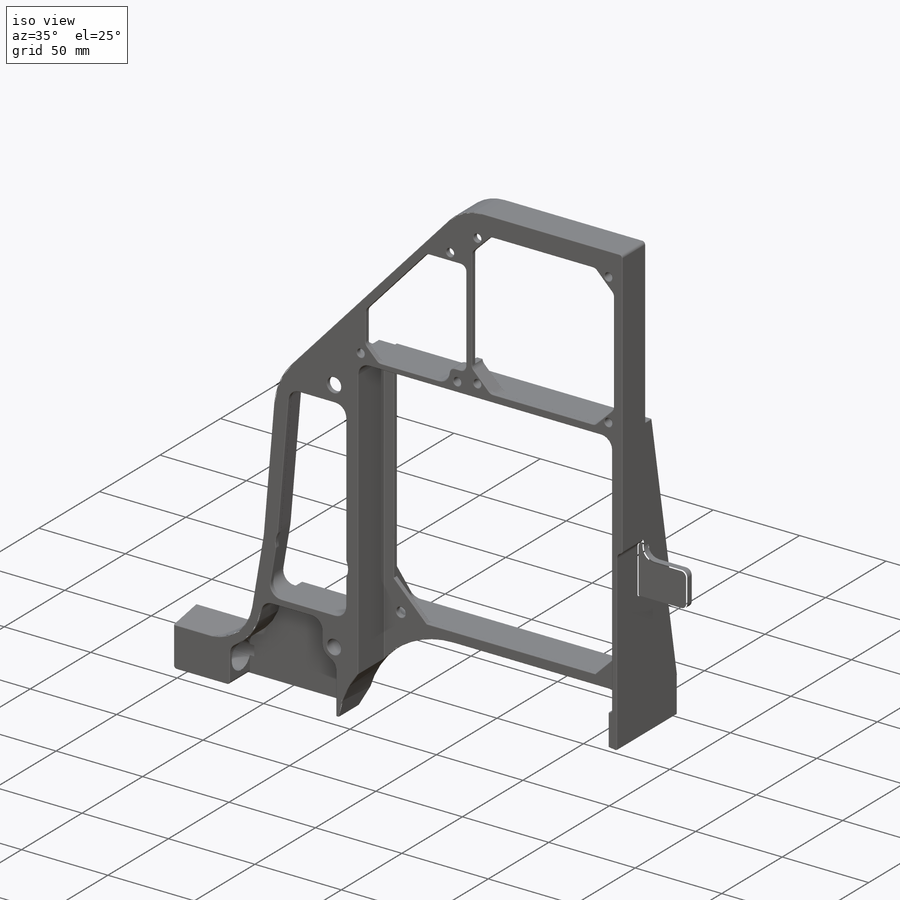
[diagram: iso view]
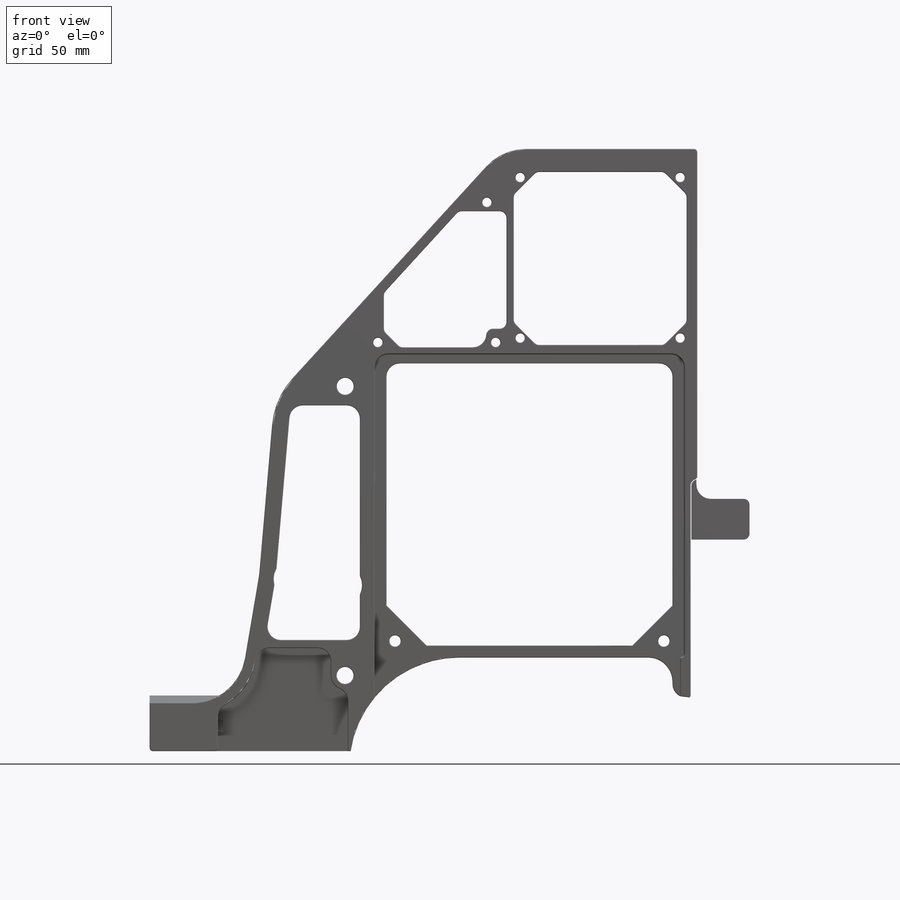
[diagram: front view]
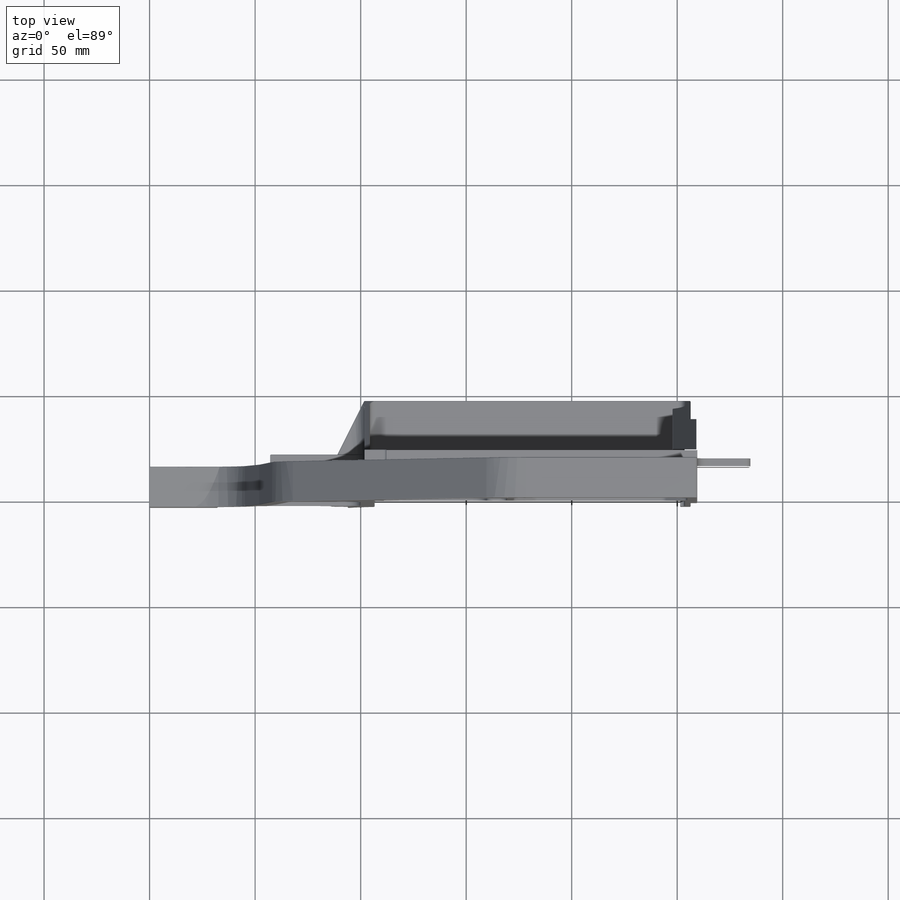
[diagram: top view]
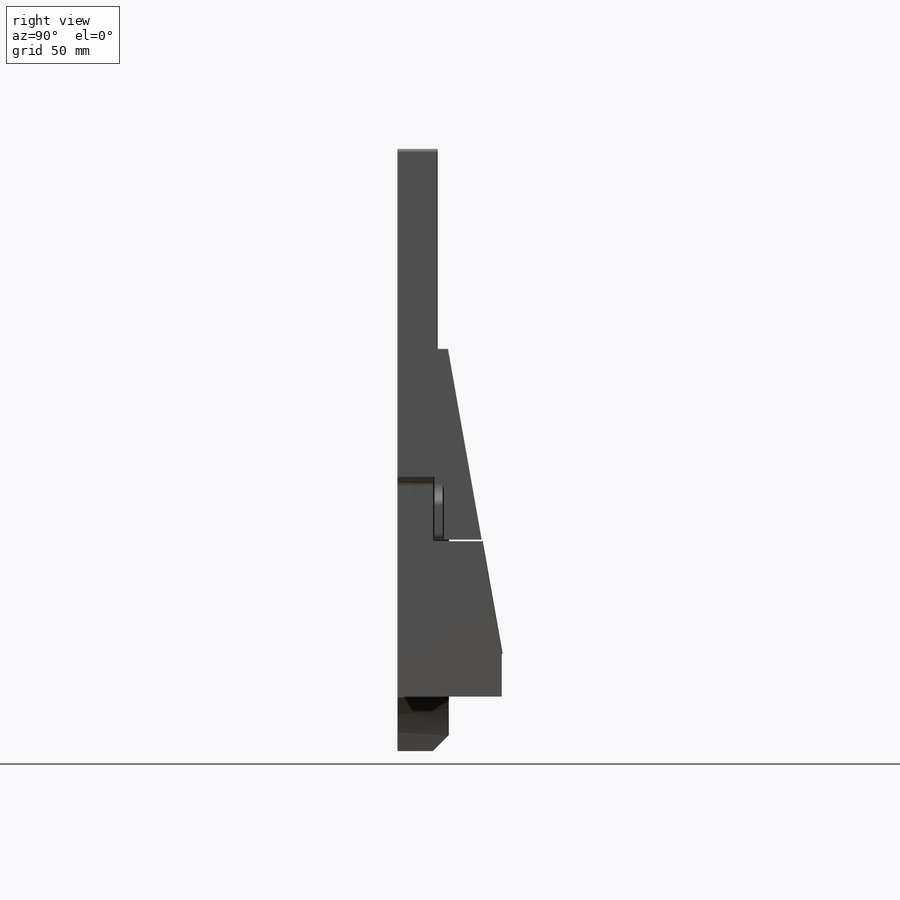
[diagram: right view]
SOLIDWORKS PART (.sldprt)
format: sldprt  version: not decoded by parser v0  size: 2,447,872 bytes
history: native  units: mm
features: fillet x44, sketch x25, extrude x18, cut_extrude x7, chamfer x3, material x1, plane x1 (+15 scaffold rows collapsed)
feature tree (114):
  scaffold x15  (default folders/planes/origin — collapsed)
  material  "6061-T6 (SS)"
  sketch  "Sketch1"  dims[c1.D17=335.915mm c1.D18=319.9638mm c1.D23=165.8874mm c1.D24=165.8874mm c2.D23=25.4mm c2.D24=38.1mm c2.D30=6.35mm c2.D31=6.35mm c2.D33=6.35mm c2.D35=76.2mm c2.D37=8.001mm c2.D36=6.35mm c3.D31=38.1mm c3.D28=6.35mm c3.D47=25.4mm c3.D50=6.35mm c3.D49=3.175mm c3.D52=19.05mm c3.D53=19.05mm c3.D54=19.05mm c3.D1=259.5118mm c3.D2=285.369mm c3.D5=~74.076137mm c4.D5=8.5deg c5.D5=~117.377746mm c6.D5=8.5deg c6.D1=3.175mm c6.D4=~92.444024mm c7.D4=8.5deg c7.D5=259.5118mm c7.D11=143.9164mm c7.D15=81.9404mm c7.D17=~143.81675mm c8.D17=~146.555915deg c9.D17=259.5118mm c10.D17=222.05deg c10.D18=285.369mm c10.D19=285.369mm c11.D19=5.05deg c11.D20=92.3798mm c11.D18=159.9819mm c12.D19=159.9819mm c13.D19=52.5deg c13.D20=~232.734196mm c14.D19=44.7548mm c14.D20=167.9575mm c14.D21=~40.056413mm c15.D20=256.3368mm c15.D32=111.125mm c15.D34=1.3716mm c15.D36=38.1mm c15.D37=~5.009499mm c16.D36=6.9723mm c16.D34=12.7mm c16.D38=35.8775mm c16.D39=~36.352434mm c17.D39=90.0deg c18.D39=13.97mm c18.D34=12.7mm c18.D36=~6.008644mm c18.D41=11.3284mm c18.D43=1.3716mm c18.D44=1.3716mm c18.D31=~27.530257mm c18.D35=~26.769295mm c18.D45=4.699mm c18.D47=~22.627975mm c18.D53=~11.018948mm c18.D55=25.4mm c19.D31=143.9164mm c19.D6=103.3272mm c20.D31=~9.542726mm c20.D3=25.4mm c20.D4=4.8768mm c20.D6=2.921mm c21.D4=3.175mm c21.D6=103.3145mm c22.D4=6.096mm c22.D7=4.8768mm c22.D8=18.9103mm c22.D9=162.8267mm c22.D10=146.812mm c22.D11=4.2545mm c22.D12=5.0292mm c22.D13=10.9474mm c22.D14=81.9404mm c22.D16=92.3798mm c22.D18=44.831mm c22.D20=22.86mm c22.D21=32.3215mm c22.D22=37.7698mm c22.D25=5.3086mm c22.D26=7.9121mm c22.D27=6.9723mm c22.D28=27.305mm c22.D29=3.8354mm c22.D32=111.125mm c22.D36=1.3716mm c22.D40=2.794mm c22.D41=26.67mm c22.D42=149.7076mm c22.D35=3.4544mm c23.D41=3.175mm c23.D44=58.0517mm c23.D45=4.699mm c23.D46=64.4144mm c23.D48=8.8138mm c23.D49=9.525mm c23.D51=0.9652mm c23.D53=0.9652mm c23.D31=143.9164mm]
  extrude  "Extrude1"  Depth=2.794mm
  chamfer  "Chamfer1"  Distance=7.62mm Angle=45deg
  chamfer  "Chamfer2"  Distance=10.795mm Angle=45deg
  fillet  "Fillet1"  Radius=3.175mm
  fillet  "Fillet2"  Radius=6.35mm
  fillet  "Fillet3"  Radius=1.5875mm
  fillet  "Fillet4"  Radius=1.5875mm
  fillet  "Fillet5"  Radius=3.175mm
  fillet  "Fillet6"  Radius=25.4mm
  fillet  "Fillet7"  Radius=1.5875mm
  sketch  "Sketch2"  dims[D1=2.4892mm]
  extrude  "Extrude2"  Depth=19.05mm
  sketch  "Sketch3"  dims[D1=1.27mm]
  extrude  "Extrude3"  Depth=19.05mm
  sketch  "Sketch5"
  extrude  "Extrude4"  Depth=2.286mm
  sketch  "Sketch6"  dims[D1=57.15mm D2=154.7622mm]
  extrude  "Extrude5"  Depth=24.3586mm
  sketch  "Sketch7"  dims[D6=6.35mm D7=11.43mm D1=~5.63245mm D2=~5.63245mm D3=4.5212mm D4=138.1633mm D5=157.6451mm]
  extrude  "Extrude6"  Depth=2.794mm
  sketch  "Sketch10"  dims[D1=10.541mm]
  extrude  "Extrude7"  [1 undecoded]
  sketch  "Sketch11"
  extrude  "Extrude8"  [1 undecoded]
  fillet  "Fillet8"  Radius=6.35mm
  fillet  "Fillet9"  Radius=6.35mm
  chamfer  "Chamfer3"  Distance=19.05mm Angle=45deg
  sketch  "Sketch12"  dims[D1=1.9304mm]
  extrude  "Extrude9"  Depth=49.8729mm
  sketch  "Sketch13"
  extrude  "Extrude10"  Depth=2.794mm
  sketch  "Sketch14"  dims[D1=0.0mm]
  extrude  "Extrude11"  [1 undecoded]
  plane  "Plane3"  Offset=21.7551mm
  sketch  "Sketch15"  dims[c1.D3=6.35mm c1.D4=20.0914mm c1.D1=74.4474mm c1.D2=28.3464mm c2.D3=20.0914mm]
  extrude  "Tab"  Depth=4.4831mm
  fillet  "Fillet11"  Radius=3.175mm
  sketch  "Sketch16"  dims[D1=0.0mm]
  extrude  "Extrude13"  [1 undecoded]
  sketch  "Sketch18"
  extrude  "Extrude14"  [1 undecoded]
  fillet  "Fillet12"  Radius=12.7mm
  sketch  "Sketch19"  dims[D1=38.735mm]
  extrude  "Extrude15"  Depth=2.5908mm
  sketch  "Sketch20"  dims[D1=12.7mm]
  extrude  "Extrude16"  Depth=1.651mm
  fillet  "Fillet13"  Radius=6.35mm
  fillet  "Fillet14"  Radius=3.175mm
  sketch  "Sketch21"  dims[c1.D1=~26.111556mm c2.D1=45.0deg]
  cut_extrude  "Bottom Slant Cut"  [1 undecoded]
  sketch  "Sketch22"
  extrude  "Upper Instrument Screw Hole Reinforcement Backing"  Depth=8.9408mm
  fillet  "Fillet15"  Radius=8.89mm
  fillet  "Fillet16"  Radius=6.35mm
  sketch  "Sketch23"  dims[D1=0.8636mm]
  cut_extrude  "Extrude19"  [1 undecoded]
  fillet  "Fillet17"  Radius=1.5875mm
  fillet  "Fillet18"  Radius=6.35mm
  fillet  "Fillet19"  Radius=3.175mm
  sketch  "Sketch24"  dims[D3=8.001mm D4=8.001mm D1=13.9065mm D2=9.0678mm]
  cut_extrude  "Screw Holes Left Part"  [1 undecoded]
  sketch  "Sketch25"  dims[D4=5.334mm D5=5.334mm D1=26.797mm D2=9.7028mm D3=9.7028mm]
  cut_extrude  "Screw Holes MFD"  [1 undecoded]
  sketch  "Sketch27"  dims[c1.D4=4.3434mm c1.D5=4.3434mm c1.D9=4.3434mm c1.D10=4.3434mm c1.D12=4.3434mm c1.D13=4.3434mm c1.D16=4.3434mm c1.D6=134.112mm c1.D15=4.2545mm c1.D1=5.461mm c1.D2=5.08mm c1.D3=2.8575mm c2.D6=7.5311mm c2.D7=3.0734mm c2.D8=3.0734mm c2.D11=13.5128mm c2.D14=99.6696mm c2.D15=26.5303mm]
  cut_extrude  "Screw Holes Upper Part"  [1 undecoded]
  sketch  "Sketch28"
  cut_extrude  "Extrude23"  [1 undecoded]
  sketch  "Sketch30"  dims[D1=26.4414mm]
  extrude  "Extrude24"  [1 undecoded]
  sketch  "Sketch31"  dims[D2=15.5956mm D1=12.065mm]
  cut_extrude  "Axel Cut"  Depth=34.8488mm
  fillet  "Fillet21"  Radius=0.396875mm
  fillet  "Fillet22"  Radius=0.396875mm
  fillet  "Fillet23"  Radius=0.396875mm
  fillet  "Fillet24"  Radius=0.396875mm
  fillet  "Fillet25"  Radius=0.396875mm
  fillet  "Fillet26"  Radius=0.396875mm
  fillet  "Fillet27"  Radius=0.396875mm
  fillet  "Fillet28"  Radius=0.396875mm
  fillet  "Fillet29"  Radius=0.396875mm
  fillet  "Fillet30"  Radius=0.396875mm
  fillet  "Fillet31"  Radius=0.396875mm
  fillet  "Fillet32"  Radius=0.396875mm
  fillet  "Fillet33"  Radius=0.396875mm
  fillet  "Fillet34"  Radius=0.396875mm
  fillet  "Fillet35"  Radius=0.396875mm
  fillet  "Fillet36"  Radius=0.396875mm
  fillet  "Fillet37"  Radius=0.396875mm
  fillet  "Fillet38"  Radius=0.396875mm
  fillet  "Fillet39"  Radius=0.396875mm
  fillet  "Fillet40"  Radius=0.396875mm
  fillet  "Fillet41"  Radius=0.396875mm
  fillet  "Fillet42"  Radius=0.396875mm
  fillet  "Fillet43"  Radius=0.396875mm
  fillet  "Fillet44"  Radius=0.396875mm
  fillet  "Fillet46"  Radius=0.396875mm
  fillet  "Fillet47"  Radius=0.396875mm
decode coverage: 79 of 97 modeling features carry decoded parameters
note: ~ marks probable driven/reference dimensions
note: 12 parameter values undecoded
summary: no parameter record found for 12 features
note: suppression state not decoded; provenance and decode notes live in map.json
